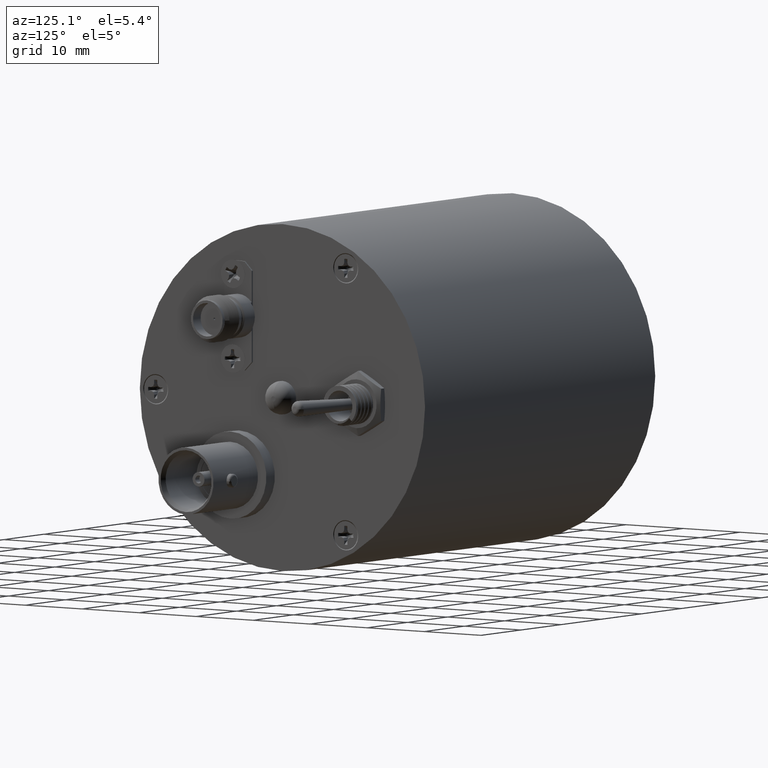
[diagram: clean part render]
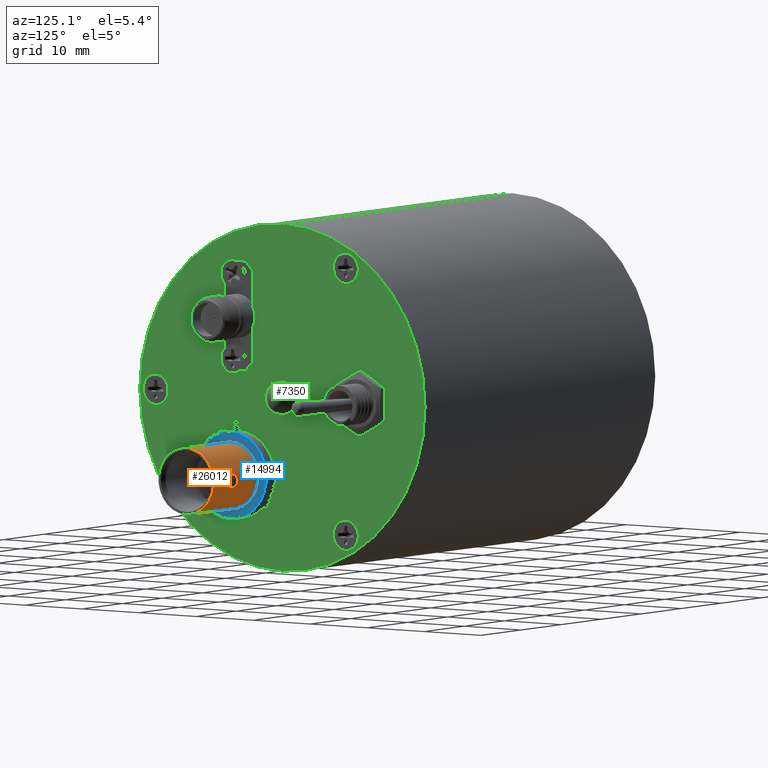
[diagram: same view with three faces highlighted in distinct colors, each labeled with its STEP entity id]
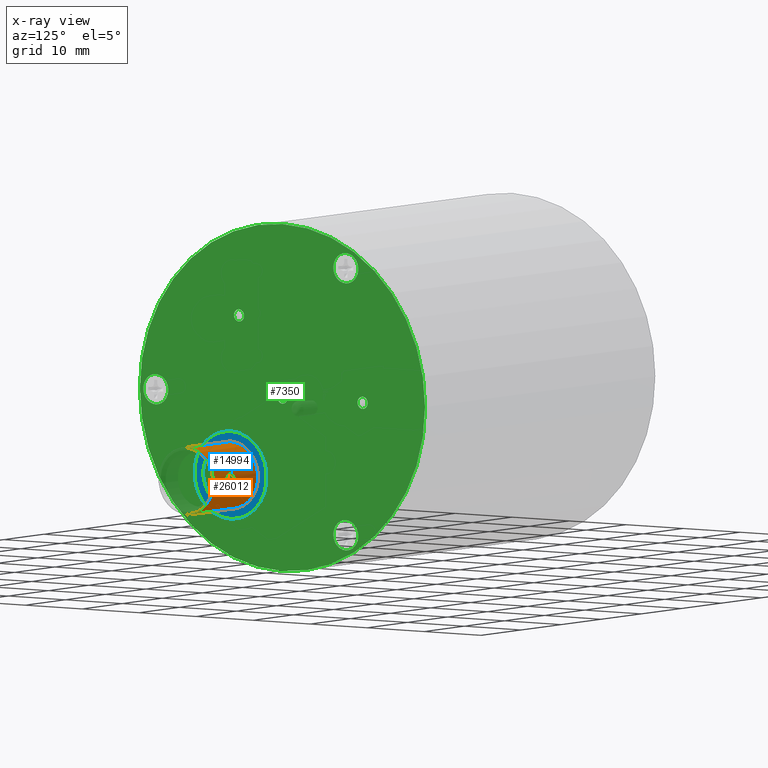
[diagram: x-ray of the same camera — body ghosted, the three highlighted faces saturated]
A machine part, auxiliary view with three faces highlighted in distinct colors.
The next image is the same camera in x-ray (body ghosted, the three faces saturated) — at least one of them is partly hidden behind the body in this view.
Their STEP definitions:

[orange] entity #26012 — the highlighted cylindrical surface (edge-blend (fillet) strip) has radius 4.826 mm, axis along (1, -0, 0).
#281 = CARTESIAN_POINT ( 'NONE',  ( 8.024325959665663500, -2.799541000918809500, -11.16949603950709500 ) ) ;
#329 = AXIS2_PLACEMENT_3D ( 'NONE', #20699, #11009, #13357 ) ;
#618 = CARTESIAN_POINT ( 'NONE',  ( 9.979406000000006200, -2.793999999999998300, -11.29875764597100700 ) ) ;
#742 = CARTESIAN_POINT ( 'NONE',  ( 13.23060600000000200, -7.619999999999998300, -6.603999999999999200 ) ) ;
#1233 = CARTESIAN_POINT ( 'NONE',  ( 9.119189958775493200, -2.896738447067336100, -10.43950703461685200 ) ) ;
#1673 = CARTESIAN_POINT ( 'NONE',  ( 8.489680331835719700, -2.871945267127392400, -12.29532711142551800 ) ) ;
#1676 = EDGE_CURVE ( 'NONE', #17320, #8752, #21539, .T. ) ;
#2135 = CARTESIAN_POINT ( 'NONE',  ( 9.979406000000000900, -2.793999999999999600, -11.43000000000000000 ) ) ;
#2675 = VERTEX_POINT ( 'NONE', #2135 ) ;
#3179 = CIRCLE ( 'NONE', #15884, 4.826000000000000500 ) ;
#3489 = CARTESIAN_POINT ( 'NONE',  ( 9.853905933864190600, -2.818437963282170800, -10.93026438419023300 ) ) ;
#3990 = CARTESIAN_POINT ( 'NONE',  ( 7.998206000000002400, -2.793999999999999600, -11.29875891395907100 ) ) ;
#4038 = CARTESIAN_POINT ( 'NONE',  ( 9.853810211611152800, -2.818454884131095500, -11.92985175355378400 ) ) ;
#4166 = CARTESIAN_POINT ( 'NONE',  ( 9.979406000000000900, -2.793999999999999600, -11.43000000000000000 ) ) ;
#4247 = CARTESIAN_POINT ( 'NONE',  ( 9.117558451594458500, -2.896783202678762300, -12.42070636284819200 ) ) ;
#5048 = DIRECTION ( 'NONE',  ( -1.000000000000000000, 2.775557561562890100E-017, -1.683656803805726100E-033 ) ) ;
#5196 = VERTEX_POINT ( 'NONE', #8155 ) ;
#5493 = CARTESIAN_POINT ( 'NONE',  ( -16.34642399999999900, -7.619999999999998300, -11.43000000000000000 ) ) ;
#5745 = B_SPLINE_CURVE_WITH_KNOTS ( 'NONE', 3,
 ( #4166, #618, #21643, #3489, #19925, #25233, #11316, #24945, #1233, #20442, #12050, #16004, #13157, #18184, #6684, #281, #3990, #28789 ),
 .UNSPECIFIED., .F., .F.,
 ( 4, 2, 2, 2, 2, 2, 2, 2, 4 ),
 ( 0.003104486599732054400, 0.003492543675478302900, 0.003880600751224551900, 0.004268657826970800400, 0.004656714902717048800, 0.005044771978463298200, 0.005432829054209546700, 0.005820886129955795200, 0.006208943205702043700 ),
 .UNSPECIFIED. ) ;
#6316 = CARTESIAN_POINT ( 'NONE',  ( 8.727852941563485300, -2.891047281644603100, -12.39427223525366800 ) ) ;
#6410 = CARTESIAN_POINT ( 'NONE',  ( 9.979406000000004400, -2.793999999999998700, -11.56124362202930600 ) ) ;
#6677 = ORIENTED_EDGE ( 'NONE', *, *, #1676, .F. ) ;
#6684 = CARTESIAN_POINT ( 'NONE',  ( 8.123801788388851400, -2.818454884131095500, -10.93014824644621700 ) ) ;
#7081 = ORIENTED_EDGE ( 'NONE', *, *, #23011, .T. ) ;
#7478 = CARTESIAN_POINT ( 'NONE',  ( 7.998206000000002400, -2.793999999999999600, -11.43000000000000000 ) ) ;
#7889 = DIRECTION ( 'NONE',  ( 0.0000000000000000000, 0.0000000000000000000, -1.000000000000000000 ) ) ;
#8076 = FACE_BOUND ( 'NONE', #24431, .T. ) ;
#8155 = CARTESIAN_POINT ( 'NONE',  ( 2.130806000000002400, -7.619999999999998300, -6.603999999999999200 ) ) ;
#8680 = CARTESIAN_POINT ( 'NONE',  ( 9.487812045659778100, -2.871984247045253000, -12.29555629737575000 ) ) ;
#8752 = VERTEX_POINT ( 'NONE', #10537 ) ;
#8782 = CARTESIAN_POINT ( 'NONE',  ( 8.123706066135806500, -2.818437963282171700, -11.92973561580976100 ) ) ;
#9161 = EDGE_CURVE ( 'NONE', #2675, #25137, #5745, .T. ) ;
#10537 = CARTESIAN_POINT ( 'NONE',  ( 13.23060600000000200, -7.619999999999999200, -16.25600000000000000 ) ) ;
#10715 = CARTESIAN_POINT ( 'NONE',  ( -16.34642399999999900, -7.619999999999997400, -6.603999999999999200 ) ) ;
#10734 = CIRCLE ( 'NONE', #329, 4.826000000000000500 ) ;
#11009 = DIRECTION ( 'NONE',  ( -1.000000000000000000, 2.775557561562890100E-017, -1.683656803805726100E-033 ) ) ;
#11049 = CARTESIAN_POINT ( 'NONE',  ( 9.596802804635315100, -2.858660749443543600, -12.22282204066384600 ) ) ;
#11316 = CARTESIAN_POINT ( 'NONE',  ( 9.487931668164284500, -2.871945267127392800, -10.56467288857448000 ) ) ;
#12050 = CARTESIAN_POINT ( 'NONE',  ( 8.730077765069713900, -2.891196043791667900, -10.46498474728029200 ) ) ;
#12298 = B_SPLINE_CURVE_WITH_KNOTS ( 'NONE', 3,
 ( #13606, #29650, #18020, #8782, #18121, #15955, #1673, #6316, #25179, #4247, #22739, #8680, #11049, #20648, #4038, #20457, #6410, #27510 ),
 .UNSPECIFIED., .F., .F.,
 ( 4, 2, 2, 2, 2, 2, 2, 2, 4 ),
 ( 0.0000000000000000000, 0.0003880608249665068000, 0.0007761216499330136100, 0.001164182474899520500, 0.001552243299866027200, 0.001940304124832534000, 0.002328364949799040900, 0.002716425774765547500, 0.003104486599732054400 ),
 .UNSPECIFIED. ) ;
#12742 = ORIENTED_EDGE ( 'NONE', *, *, #23576, .F. ) ;
#13157 = CARTESIAN_POINT ( 'NONE',  ( 8.380809195364687300, -2.858660749443544100, -10.63717795933615300 ) ) ;
#13357 = DIRECTION ( 'NONE',  ( 0.0000000000000000000, 0.0000000000000000000, -1.000000000000000000 ) ) ;
#13606 = CARTESIAN_POINT ( 'NONE',  ( 7.998206000000002400, -2.793999999999999600, -11.43000000000000000 ) ) ;
#15884 = AXIS2_PLACEMENT_3D ( 'NONE', #26293, #5048, #28512 ) ;
#15955 = CARTESIAN_POINT ( 'NONE',  ( 8.379478705785743400, -2.858472273914594900, -12.22158485538863500 ) ) ;
#16004 = CARTESIAN_POINT ( 'NONE',  ( 8.489799954340227800, -2.871984247045253000, -10.56444370262425300 ) ) ;
#17174 = VECTOR ( 'NONE', #26401, 1000.000000000000000 ) ;
#17320 = VERTEX_POINT ( 'NONE', #20029 ) ;
#17424 = ORIENTED_EDGE ( 'NONE', *, *, #9161, .T. ) ;
#18020 = CARTESIAN_POINT ( 'NONE',  ( 8.024164739577806000, -2.799509064608984000, -11.69000157686381900 ) ) ;
#18121 = CARTESIAN_POINT ( 'NONE',  ( 8.197273345685530900, -2.831744526693288100, -12.03939510328603600 ) ) ;
#18184 = CARTESIAN_POINT ( 'NONE',  ( 8.196651036062471400, -2.831659908555613100, -10.82113432046282500 ) ) ;
#18438 = LINE ( 'NONE', #10715, #21345 ) ;
#18754 = EDGE_CURVE ( 'NONE', #25137, #2675, #12298, .T. ) ;
#18938 = EDGE_CURVE ( 'NONE', #26414, #8752, #3179, .T. ) ;
#19780 = CYLINDRICAL_SURFACE ( 'NONE', #20867, 4.826000000000000500 ) ;
#19925 = CARTESIAN_POINT ( 'NONE',  ( 9.780338654314475000, -2.831744526693287700, -10.82060489671396100 ) ) ;
#20029 = CARTESIAN_POINT ( 'NONE',  ( 2.130806000000002400, -7.619999999999999200, -16.25600000000000000 ) ) ;
#20442 = CARTESIAN_POINT ( 'NONE',  ( 8.860053548405545600, -2.896783202678762300, -10.43929363715180600 ) ) ;
#20457 = CARTESIAN_POINT ( 'NONE',  ( 9.953286040334340600, -2.799541000918809500, -11.69050396049290600 ) ) ;
#20648 = CARTESIAN_POINT ( 'NONE',  ( 9.780960963937532800, -2.831659908555612700, -12.03886567953717400 ) ) ;
#20699 = CARTESIAN_POINT ( 'NONE',  ( 2.130806000000002400, -7.619999999999999200, -11.43000000000000000 ) ) ;
#20867 = AXIS2_PLACEMENT_3D ( 'NONE', #5493, #24589, #7889 ) ;
#21345 = VECTOR ( 'NONE', #29415, 1000.000000000000000 ) ;
#21539 = LINE ( 'NONE', #28534, #17174 ) ;
#21643 = CARTESIAN_POINT ( 'NONE',  ( 9.953447260422198200, -2.799509064608984000, -11.16999842313618400 ) ) ;
#22739 = CARTESIAN_POINT ( 'NONE',  ( 9.247534234930290300, -2.891196043791667900, -12.39501525271970600 ) ) ;
#22817 = ORIENTED_EDGE ( 'NONE', *, *, #18754, .T. ) ;
#23011 = EDGE_CURVE ( 'NONE', #5196, #26414, #18438, .T. ) ;
#23576 = EDGE_CURVE ( 'NONE', #5196, #17320, #10734, .T. ) ;
#24431 = EDGE_LOOP ( 'NONE', ( #22817, #17424 ) ) ;
#24589 = DIRECTION ( 'NONE',  ( 1.000000000000000000, -2.775557561562890100E-017, 1.683656803805726100E-033 ) ) ;
#24945 = CARTESIAN_POINT ( 'NONE',  ( 9.249759058436517000, -2.891047281644604000, -10.46572776474633000 ) ) ;
#25137 = VERTEX_POINT ( 'NONE', #7478 ) ;
#25179 = CARTESIAN_POINT ( 'NONE',  ( 8.858422041224509200, -2.896738447067335600, -12.42049296538314900 ) ) ;
#25233 = CARTESIAN_POINT ( 'NONE',  ( 9.598133294214257200, -2.858472273914595400, -10.63841514461136500 ) ) ;
#25624 = EDGE_LOOP ( 'NONE', ( #12742, #7081, #28669, #6677 ) ) ;
#26012 = ADVANCED_FACE ( 'NONE', ( #8076, #29641 ), #19780, .T. ) ;
#26293 = CARTESIAN_POINT ( 'NONE',  ( 13.23060600000000200, -7.619999999999999200, -11.43000000000000000 ) ) ;
#26401 = DIRECTION ( 'NONE',  ( 1.000000000000000000, -2.775557561562890100E-017, 1.683656803805726100E-033 ) ) ;
#26414 = VERTEX_POINT ( 'NONE', #742 ) ;
#27510 = CARTESIAN_POINT ( 'NONE',  ( 9.979406000000000900, -2.793999999999999600, -11.43000000000000000 ) ) ;
#28512 = DIRECTION ( 'NONE',  ( 0.0000000000000000000, 0.0000000000000000000, -1.000000000000000000 ) ) ;
#28534 = CARTESIAN_POINT ( 'NONE',  ( -16.34642399999999900, -7.619999999999998300, -16.25600000000000000 ) ) ;
#28669 = ORIENTED_EDGE ( 'NONE', *, *, #18938, .T. ) ;
#28789 = CARTESIAN_POINT ( 'NONE',  ( 7.998206000000002400, -2.793999999999999600, -11.43000000000000000 ) ) ;
#29415 = DIRECTION ( 'NONE',  ( 1.000000000000000000, -2.775557561562890100E-017, 1.683656803805726100E-033 ) ) ;
#29641 = FACE_OUTER_BOUND ( 'NONE', #25624, .T. ) ;
#29650 = CARTESIAN_POINT ( 'NONE',  ( 7.998206000000004100, -2.793999999999999200, -11.56124235402898900 ) ) ;

[blue] entity #14994 — the highlighted planar face has unit normal (1, -0, -0).
#126 = CIRCLE ( 'NONE', #1701, 4.826000000000000500 ) ;
#329 = AXIS2_PLACEMENT_3D ( 'NONE', #20699, #11009, #13357 ) ;
#384 = CARTESIAN_POINT ( 'NONE',  ( 2.130806000000002400, -7.619999999999998300, -5.135244999999998500 ) ) ;
#1701 = AXIS2_PLACEMENT_3D ( 'NONE', #17443, #19892, #19696 ) ;
#1998 = AXIS2_PLACEMENT_3D ( 'NONE', #17169, #21867, #24233 ) ;
#5196 = VERTEX_POINT ( 'NONE', #8155 ) ;
#5336 = VERTEX_POINT ( 'NONE', #13759 ) ;
#5723 = EDGE_CURVE ( 'NONE', #17320, #5196, #126, .T. ) ;
#5726 = PLANE ( 'NONE',  #18634 ) ;
#6126 = CARTESIAN_POINT ( 'NONE',  ( 2.130806000000002400, -7.619999999999999200, -11.43000000000000000 ) ) ;
#8037 = ORIENTED_EDGE ( 'NONE', *, *, #23576, .T. ) ;
#8155 = CARTESIAN_POINT ( 'NONE',  ( 2.130806000000002400, -7.619999999999998300, -6.603999999999999200 ) ) ;
#9185 = DIRECTION ( 'NONE',  ( 0.0000000000000000000, 0.0000000000000000000, -1.000000000000000000 ) ) ;
#10411 = EDGE_CURVE ( 'NONE', #15935, #5336, #12477, .T. ) ;
#10734 = CIRCLE ( 'NONE', #329, 4.826000000000000500 ) ;
#10975 = ORIENTED_EDGE ( 'NONE', *, *, #16449, .F. ) ;
#11009 = DIRECTION ( 'NONE',  ( -1.000000000000000000, 2.775557561562890100E-017, -1.683656803805726100E-033 ) ) ;
#12477 = CIRCLE ( 'NONE', #1998, 6.294755000000003000 ) ;
#12586 = ORIENTED_EDGE ( 'NONE', *, *, #10411, .F. ) ;
#13357 = DIRECTION ( 'NONE',  ( 0.0000000000000000000, 0.0000000000000000000, -1.000000000000000000 ) ) ;
#13381 = ORIENTED_EDGE ( 'NONE', *, *, #5723, .T. ) ;
#13759 = CARTESIAN_POINT ( 'NONE',  ( 2.130806000000002400, -7.619999999999999200, -17.72475500000000200 ) ) ;
#14125 = CARTESIAN_POINT ( 'NONE',  ( 2.130806000000002400, -7.619999999999999200, -11.43000000000000000 ) ) ;
#14994 = ADVANCED_FACE ( 'NONE', ( #30054, #18410 ), #5726, .T. ) ;
#15935 = VERTEX_POINT ( 'NONE', #384 ) ;
#16449 = EDGE_CURVE ( 'NONE', #5336, #15935, #20548, .T. ) ;
#17169 = CARTESIAN_POINT ( 'NONE',  ( 2.130806000000002400, -7.619999999999999200, -11.43000000000000000 ) ) ;
#17320 = VERTEX_POINT ( 'NONE', #20029 ) ;
#17443 = CARTESIAN_POINT ( 'NONE',  ( 2.130806000000002400, -7.619999999999999200, -11.43000000000000000 ) ) ;
#18410 = FACE_OUTER_BOUND ( 'NONE', #29684, .T. ) ;
#18634 = AXIS2_PLACEMENT_3D ( 'NONE', #6126, #19647, #22116 ) ;
#19647 = DIRECTION ( 'NONE',  ( 1.000000000000000000, -2.775557561562890100E-017, -2.244875738407634100E-033 ) ) ;
#19696 = DIRECTION ( 'NONE',  ( 0.0000000000000000000, 0.0000000000000000000, -1.000000000000000000 ) ) ;
#19892 = DIRECTION ( 'NONE',  ( -1.000000000000000000, 2.775557561562890100E-017, -1.683656803805726100E-033 ) ) ;
#20029 = CARTESIAN_POINT ( 'NONE',  ( 2.130806000000002400, -7.619999999999999200, -16.25600000000000000 ) ) ;
#20548 = CIRCLE ( 'NONE', #22440, 6.294755000000003000 ) ;
#20699 = CARTESIAN_POINT ( 'NONE',  ( 2.130806000000002400, -7.619999999999999200, -11.43000000000000000 ) ) ;
#21867 = DIRECTION ( 'NONE',  ( -1.000000000000000000, 2.775557561562890100E-017, -1.683656803805726100E-033 ) ) ;
#22116 = DIRECTION ( 'NONE',  ( -1.683656803805726100E-033, 2.022004307797137000E-017, -1.000000000000000000 ) ) ;
#22440 = AXIS2_PLACEMENT_3D ( 'NONE', #14125, #25687, #9185 ) ;
#23576 = EDGE_CURVE ( 'NONE', #5196, #17320, #10734, .T. ) ;
#24233 = DIRECTION ( 'NONE',  ( 0.0000000000000000000, 0.0000000000000000000, -1.000000000000000000 ) ) ;
#25687 = DIRECTION ( 'NONE',  ( -1.000000000000000000, 2.775557561562890100E-017, -1.683656803805726100E-033 ) ) ;
#28603 = EDGE_LOOP ( 'NONE', ( #13381, #8037 ) ) ;
#29684 = EDGE_LOOP ( 'NONE', ( #10975, #12586 ) ) ;
#30054 = FACE_BOUND ( 'NONE', #28603, .T. ) ;

[green] entity #7350 — the highlighted planar face has unit normal (1, 0, -0).
#53 = VERTEX_POINT ( 'NONE', #23760 ) ;
#263 = EDGE_CURVE ( 'NONE', #8527, #29329, #5273, .T. ) ;
#360 = AXIS2_PLACEMENT_3D ( 'NONE', #17192, #848, #3085 ) ;
#438 = AXIS2_PLACEMENT_3D ( 'NONE', #16355, #2268, #21048 ) ;
#512 = ORIENTED_EDGE ( 'NONE', *, *, #29742, .T. ) ;
#737 = AXIS2_PLACEMENT_3D ( 'NONE', #12311, #28648, #28958 ) ;
#821 = AXIS2_PLACEMENT_3D ( 'NONE', #13874, #9346, #18703 ) ;
#822 = FACE_OUTER_BOUND ( 'NONE', #6841, .T. ) ;
#848 = DIRECTION ( 'NONE',  ( 1.000000000000000000, -0.0000000000000000000, -0.0000000000000000000 ) ) ;
#899 = CARTESIAN_POINT ( 'NONE',  ( 0.0000000000000000000, 0.0000000000000000000, -25.01899999999999800 ) ) ;
#1323 = CARTESIAN_POINT ( 'NONE',  ( 1.734723475976807100E-015, -22.22499999999999800, -0.0000000000000000000 ) ) ;
#1371 = CIRCLE ( 'NONE', #24281, 2.184399999999999700 ) ;
#1543 = FACE_BOUND ( 'NONE', #5334, .T. ) ;
#1589 = DIRECTION ( 'NONE',  ( 0.0000000000000000000, 0.0000000000000000000, -1.000000000000000000 ) ) ;
#1855 = CARTESIAN_POINT ( 'NONE',  ( 1.734723475976807100E-015, 14.06366810995935000, 0.0000000000000000000 ) ) ;
#2224 = AXIS2_PLACEMENT_3D ( 'NONE', #1323, #27068, #29493 ) ;
#2268 = DIRECTION ( 'NONE',  ( 1.000000000000000000, -0.0000000000000000000, -0.0000000000000000000 ) ) ;
#2272 = AXIS2_PLACEMENT_3D ( 'NONE', #9415, #2811, #9627 ) ;
#2452 = ORIENTED_EDGE ( 'NONE', *, *, #27988, .F. ) ;
#2617 = EDGE_CURVE ( 'NONE', #20734, #13688, #14161, .T. ) ;
#2629 = VERTEX_POINT ( 'NONE', #8841 ) ;
#2682 = ORIENTED_EDGE ( 'NONE', *, *, #14570, .F. ) ;
#2754 = CIRCLE ( 'NONE', #2224, 2.184399999999999700 ) ;
#2811 = DIRECTION ( 'NONE',  ( 1.000000000000000000, -0.0000000000000000000, -0.0000000000000000000 ) ) ;
#2995 = CIRCLE ( 'NONE', #22563, 0.8826500000000004900 ) ;
#3085 = DIRECTION ( 'NONE',  ( 0.0000000000000000000, 0.0000000000000000000, -1.000000000000000000 ) ) ;
#3161 = CARTESIAN_POINT ( 'NONE',  ( 1.734723475976807100E-015, 11.11249999999999900, -21.43181459910914600 ) ) ;
#3210 = CIRCLE ( 'NONE', #438, 0.8826500000000004900 ) ;
#3505 = AXIS2_PLACEMENT_3D ( 'NONE', #14236, #25603, #30345 ) ;
#4014 = DIRECTION ( 'NONE',  ( 1.000000000000000000, -0.0000000000000000000, -0.0000000000000000000 ) ) ;
#4082 = EDGE_CURVE ( 'NONE', #29329, #8527, #2754, .T. ) ;
#4184 = CARTESIAN_POINT ( 'NONE',  ( 1.734723475976807100E-015, 0.0000000000000000000, -0.8826500000000004900 ) ) ;
#4360 = CARTESIAN_POINT ( 'NONE',  ( 1.734723475976807100E-015, -7.619999999999999200, -11.43000000000000000 ) ) ;
#4513 = DIRECTION ( 'NONE',  ( 0.0000000000000000000, 0.0000000000000000000, -1.000000000000000000 ) ) ;
#4543 = CARTESIAN_POINT ( 'NONE',  ( 1.734723475976807100E-015, -22.22499999999999800, 2.184399999999999700 ) ) ;
#4802 = VERTEX_POINT ( 'NONE', #10148 ) ;
#5210 = ORIENTED_EDGE ( 'NONE', *, *, #26364, .F. ) ;
#5220 = DIRECTION ( 'NONE',  ( 1.000000000000000000, -0.0000000000000000000, -0.0000000000000000000 ) ) ;
#5273 = CIRCLE ( 'NONE', #360, 2.184399999999999700 ) ;
#5274 = ORIENTED_EDGE ( 'NONE', *, *, #14977, .F. ) ;
#5334 = EDGE_LOOP ( 'NONE', ( #6699, #25865 ) ) ;
#5960 = FACE_BOUND ( 'NONE', #6159, .T. ) ;
#6159 = EDGE_LOOP ( 'NONE', ( #12436, #17888 ) ) ;
#6362 = CIRCLE ( 'NONE', #7214, 0.8826500000000004900 ) ;
#6699 = ORIENTED_EDGE ( 'NONE', *, *, #15213, .F. ) ;
#6743 = DIRECTION ( 'NONE',  ( 1.000000000000000000, -0.0000000000000000000, -0.0000000000000000000 ) ) ;
#6841 = EDGE_LOOP ( 'NONE', ( #27016, #512 ) ) ;
#6954 = VERTEX_POINT ( 'NONE', #4184 ) ;
#7010 = EDGE_LOOP ( 'NONE', ( #8358, #7373 ) ) ;
#7065 = FACE_BOUND ( 'NONE', #16215, .T. ) ;
#7214 = AXIS2_PLACEMENT_3D ( 'NONE', #4360, #6743, #30046 ) ;
#7350 = ADVANCED_FACE ( 'NONE', ( #14403, #1543, #20611, #14789, #7065, #8186, #5960, #822 ), #11770, .T. ) ;
#7373 = ORIENTED_EDGE ( 'NONE', *, *, #2617, .F. ) ;
#7443 = AXIS2_PLACEMENT_3D ( 'NONE', #15451, #22547, #15256 ) ;
#7672 = CARTESIAN_POINT ( 'NONE',  ( 0.0000000000000000000, 3.063943826786763600E-015, 25.01900000000000200 ) ) ;
#8186 = FACE_BOUND ( 'NONE', #10625, .T. ) ;
#8358 = ORIENTED_EDGE ( 'NONE', *, *, #22576, .F. ) ;
#8527 = VERTEX_POINT ( 'NONE', #4543 ) ;
#8841 = CARTESIAN_POINT ( 'NONE',  ( 1.734723475976807100E-015, 1.080934497267411900E-016, 0.8826500000000004900 ) ) ;
#9346 = DIRECTION ( 'NONE',  ( 1.000000000000000000, -0.0000000000000000000, -0.0000000000000000000 ) ) ;
#9415 = CARTESIAN_POINT ( 'NONE',  ( 1.734723475976807100E-015, 0.0000000000000000000, 0.0000000000000000000 ) ) ;
#9627 = DIRECTION ( 'NONE',  ( 0.0000000000000000000, 0.0000000000000000000, -1.000000000000000000 ) ) ;
#9756 = CARTESIAN_POINT ( 'NONE',  ( 1.734723475976807100E-015, 11.11249999999999900, -19.24741459910914500 ) ) ;
#10148 = CARTESIAN_POINT ( 'NONE',  ( 1.734723475976807100E-015, 11.11249999999999900, 17.06301459910914500 ) ) ;
#10286 = DIRECTION ( 'NONE',  ( 0.0000000000000000000, 0.0000000000000000000, -1.000000000000000000 ) ) ;
#10368 = CARTESIAN_POINT ( 'NONE',  ( 1.734723475976807100E-015, -7.619999999999999200, 10.54734999999999800 ) ) ;
#10501 = DIRECTION ( 'NONE',  ( 1.000000000000000000, -0.0000000000000000000, -0.0000000000000000000 ) ) ;
#10503 = EDGE_CURVE ( 'NONE', #28147, #11964, #19056, .T. ) ;
#10625 = EDGE_LOOP ( 'NONE', ( #23134, #13297 ) ) ;
#11121 = CIRCLE ( 'NONE', #2272, 0.8826500000000004900 ) ;
#11253 = DIRECTION ( 'NONE',  ( 1.000000000000000000, -0.0000000000000000000, -0.0000000000000000000 ) ) ;
#11498 = CARTESIAN_POINT ( 'NONE',  ( 1.734723475976807100E-015, -7.619999999999999200, -12.31265000000000000 ) ) ;
#11616 = VERTEX_POINT ( 'NONE', #3161 ) ;
#11770 = PLANE ( 'NONE',  #3505 ) ;
#11802 = CIRCLE ( 'NONE', #19616, 0.8826500000000004900 ) ;
#11964 = VERTEX_POINT ( 'NONE', #7672 ) ;
#11994 = CIRCLE ( 'NONE', #13169, 0.8826500000000004900 ) ;
#12311 = CARTESIAN_POINT ( 'NONE',  ( 1.734723475976807100E-015, 11.11249999999999900, 19.24741459910914500 ) ) ;
#12436 = ORIENTED_EDGE ( 'NONE', *, *, #4082, .F. ) ;
#13169 = AXIS2_PLACEMENT_3D ( 'NONE', #16255, #16663, #13910 ) ;
#13297 = ORIENTED_EDGE ( 'NONE', *, *, #28114, .F. ) ;
#13549 = EDGE_CURVE ( 'NONE', #53, #22107, #6362, .T. ) ;
#13688 = VERTEX_POINT ( 'NONE', #10368 ) ;
#13874 = CARTESIAN_POINT ( 'NONE',  ( 1.734723475976807100E-015, -7.619999999999999200, 11.43000000000000000 ) ) ;
#13910 = DIRECTION ( 'NONE',  ( 0.0000000000000000000, 0.0000000000000000000, -1.000000000000000000 ) ) ;
#14099 = ORIENTED_EDGE ( 'NONE', *, *, #19733, .F. ) ;
#14161 = CIRCLE ( 'NONE', #821, 0.8826500000000004900 ) ;
#14167 = DIRECTION ( 'NONE',  ( 0.0000000000000000000, 0.0000000000000000000, -1.000000000000000000 ) ) ;
#14236 = CARTESIAN_POINT ( 'NONE',  ( 0.0000000000000000000, 0.0000000000000000000, 0.0000000000000000000 ) ) ;
#14403 = FACE_BOUND ( 'NONE', #15732, .T. ) ;
#14570 = EDGE_CURVE ( 'NONE', #6954, #2629, #11121, .T. ) ;
#14789 = FACE_BOUND ( 'NONE', #27920, .T. ) ;
#14977 = EDGE_CURVE ( 'NONE', #11616, #29538, #26465, .T. ) ;
#15213 = EDGE_CURVE ( 'NONE', #28441, #24607, #11802, .T. ) ;
#15256 = DIRECTION ( 'NONE',  ( 0.0000000000000000000, 0.0000000000000000000, -1.000000000000000000 ) ) ;
#15451 = CARTESIAN_POINT ( 'NONE',  ( 1.734723475976807100E-015, 11.11249999999999900, -19.24741459910914500 ) ) ;
#15511 = AXIS2_PLACEMENT_3D ( 'NONE', #20431, #4014, #22812 ) ;
#15668 = CARTESIAN_POINT ( 'NONE',  ( 1.734723475976807100E-015, -7.619999999999999200, 11.43000000000000000 ) ) ;
#15732 = EDGE_LOOP ( 'NONE', ( #2682, #5210 ) ) ;
#15980 = CARTESIAN_POINT ( 'NONE',  ( 1.734723475976807100E-015, 14.06366810995935000, -0.8826500000000004900 ) ) ;
#16215 = EDGE_LOOP ( 'NONE', ( #5274, #2452 ) ) ;
#16239 = CARTESIAN_POINT ( 'NONE',  ( 1.734723475976807100E-015, 14.06366810995935000, 0.0000000000000000000 ) ) ;
#16255 = CARTESIAN_POINT ( 'NONE',  ( 1.734723475976807100E-015, -7.619999999999999200, -11.43000000000000000 ) ) ;
#16355 = CARTESIAN_POINT ( 'NONE',  ( 1.734723475976807100E-015, 0.0000000000000000000, 0.0000000000000000000 ) ) ;
#16663 = DIRECTION ( 'NONE',  ( 1.000000000000000000, -0.0000000000000000000, -0.0000000000000000000 ) ) ;
#17192 = CARTESIAN_POINT ( 'NONE',  ( 1.734723475976807100E-015, -22.22499999999999800, -0.0000000000000000000 ) ) ;
#17888 = ORIENTED_EDGE ( 'NONE', *, *, #263, .F. ) ;
#18137 = DIRECTION ( 'NONE',  ( 1.000000000000000000, -0.0000000000000000000, -0.0000000000000000000 ) ) ;
#18435 = EDGE_CURVE ( 'NONE', #4802, #25632, #29584, .T. ) ;
#18552 = CARTESIAN_POINT ( 'NONE',  ( 1.734723475976807100E-015, -22.22499999999999800, -2.184399999999999700 ) ) ;
#18647 = CARTESIAN_POINT ( 'NONE',  ( 1.734723475976807100E-015, 11.11249999999999900, -17.06301459910914500 ) ) ;
#18703 = DIRECTION ( 'NONE',  ( 0.0000000000000000000, 0.0000000000000000000, -1.000000000000000000 ) ) ;
#18735 = CARTESIAN_POINT ( 'NONE',  ( 1.734723475976807100E-015, 14.06366810995935000, 0.8826500000000004900 ) ) ;
#18975 = CIRCLE ( 'NONE', #25710, 0.8826500000000004900 ) ;
#19056 = CIRCLE ( 'NONE', #19358, 25.01899999999999800 ) ;
#19358 = AXIS2_PLACEMENT_3D ( 'NONE', #26761, #10501, #29296 ) ;
#19616 = AXIS2_PLACEMENT_3D ( 'NONE', #16239, #28287, #4513 ) ;
#19679 = EDGE_CURVE ( 'NONE', #24607, #28441, #18975, .T. ) ;
#19733 = EDGE_CURVE ( 'NONE', #22107, #53, #11994, .T. ) ;
#20431 = CARTESIAN_POINT ( 'NONE',  ( 0.0000000000000000000, 0.0000000000000000000, 0.0000000000000000000 ) ) ;
#20611 = FACE_BOUND ( 'NONE', #7010, .T. ) ;
#20734 = VERTEX_POINT ( 'NONE', #28448 ) ;
#21048 = DIRECTION ( 'NONE',  ( 0.0000000000000000000, 0.0000000000000000000, -1.000000000000000000 ) ) ;
#21736 = DIRECTION ( 'NONE',  ( 1.000000000000000000, -0.0000000000000000000, -0.0000000000000000000 ) ) ;
#22107 = VERTEX_POINT ( 'NONE', #11498 ) ;
#22528 = AXIS2_PLACEMENT_3D ( 'NONE', #9756, #5220, #14167 ) ;
#22547 = DIRECTION ( 'NONE',  ( 1.000000000000000000, -0.0000000000000000000, -0.0000000000000000000 ) ) ;
#22563 = AXIS2_PLACEMENT_3D ( 'NONE', #15668, #18137, #1589 ) ;
#22576 = EDGE_CURVE ( 'NONE', #13688, #20734, #2995, .T. ) ;
#22812 = DIRECTION ( 'NONE',  ( 0.0000000000000000000, 0.0000000000000000000, -1.000000000000000000 ) ) ;
#23134 = ORIENTED_EDGE ( 'NONE', *, *, #18435, .F. ) ;
#23356 = ORIENTED_EDGE ( 'NONE', *, *, #13549, .F. ) ;
#23760 = CARTESIAN_POINT ( 'NONE',  ( 1.734723475976807100E-015, -7.619999999999999200, -10.54734999999999800 ) ) ;
#24216 = CARTESIAN_POINT ( 'NONE',  ( 1.734723475976807100E-015, 11.11249999999999900, 19.24741459910914500 ) ) ;
#24281 = AXIS2_PLACEMENT_3D ( 'NONE', #24216, #21736, #10286 ) ;
#24607 = VERTEX_POINT ( 'NONE', #18735 ) ;
#25603 = DIRECTION ( 'NONE',  ( 1.000000000000000000, 0.0000000000000000000, -0.0000000000000000000 ) ) ;
#25632 = VERTEX_POINT ( 'NONE', #26572 ) ;
#25710 = AXIS2_PLACEMENT_3D ( 'NONE', #1855, #11253, #27804 ) ;
#25865 = ORIENTED_EDGE ( 'NONE', *, *, #19679, .F. ) ;
#26364 = EDGE_CURVE ( 'NONE', #2629, #6954, #3210, .T. ) ;
#26465 = CIRCLE ( 'NONE', #7443, 2.184399999999999700 ) ;
#26572 = CARTESIAN_POINT ( 'NONE',  ( 1.734723475976807100E-015, 11.11249999999999900, 21.43181459910914600 ) ) ;
#26626 = CIRCLE ( 'NONE', #15511, 25.01899999999999800 ) ;
#26719 = CIRCLE ( 'NONE', #22528, 2.184399999999999700 ) ;
#26761 = CARTESIAN_POINT ( 'NONE',  ( 0.0000000000000000000, 0.0000000000000000000, 0.0000000000000000000 ) ) ;
#27016 = ORIENTED_EDGE ( 'NONE', *, *, #10503, .T. ) ;
#27068 = DIRECTION ( 'NONE',  ( 1.000000000000000000, -0.0000000000000000000, -0.0000000000000000000 ) ) ;
#27804 = DIRECTION ( 'NONE',  ( 0.0000000000000000000, 0.0000000000000000000, -1.000000000000000000 ) ) ;
#27920 = EDGE_LOOP ( 'NONE', ( #14099, #23356 ) ) ;
#27988 = EDGE_CURVE ( 'NONE', #29538, #11616, #26719, .T. ) ;
#28114 = EDGE_CURVE ( 'NONE', #25632, #4802, #1371, .T. ) ;
#28147 = VERTEX_POINT ( 'NONE', #899 ) ;
#28287 = DIRECTION ( 'NONE',  ( 1.000000000000000000, -0.0000000000000000000, -0.0000000000000000000 ) ) ;
#28441 = VERTEX_POINT ( 'NONE', #15980 ) ;
#28448 = CARTESIAN_POINT ( 'NONE',  ( 1.734723475976807100E-015, -7.619999999999999200, 12.31265000000000000 ) ) ;
#28648 = DIRECTION ( 'NONE',  ( 1.000000000000000000, -0.0000000000000000000, -0.0000000000000000000 ) ) ;
#28958 = DIRECTION ( 'NONE',  ( 0.0000000000000000000, 0.0000000000000000000, -1.000000000000000000 ) ) ;
#29296 = DIRECTION ( 'NONE',  ( 0.0000000000000000000, 0.0000000000000000000, -1.000000000000000000 ) ) ;
#29329 = VERTEX_POINT ( 'NONE', #18552 ) ;
#29493 = DIRECTION ( 'NONE',  ( 0.0000000000000000000, 0.0000000000000000000, -1.000000000000000000 ) ) ;
#29538 = VERTEX_POINT ( 'NONE', #18647 ) ;
#29584 = CIRCLE ( 'NONE', #737, 2.184399999999999700 ) ;
#29742 = EDGE_CURVE ( 'NONE', #11964, #28147, #26626, .T. ) ;
#30046 = DIRECTION ( 'NONE',  ( 0.0000000000000000000, 0.0000000000000000000, -1.000000000000000000 ) ) ;
#30345 = DIRECTION ( 'NONE',  ( -0.0000000000000000000, 0.0000000000000000000, -1.000000000000000000 ) ) ;